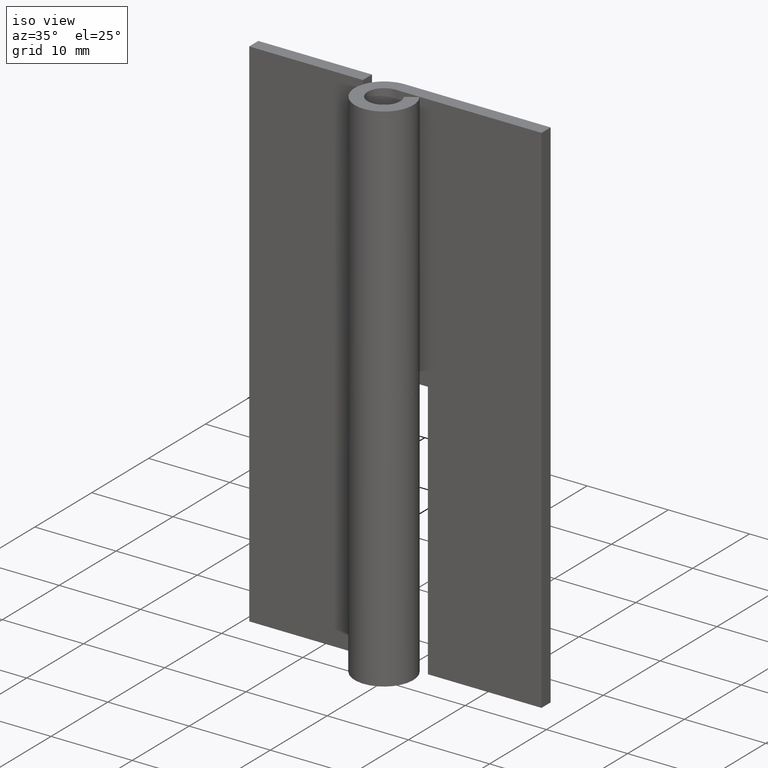
[diagram: clean part render]
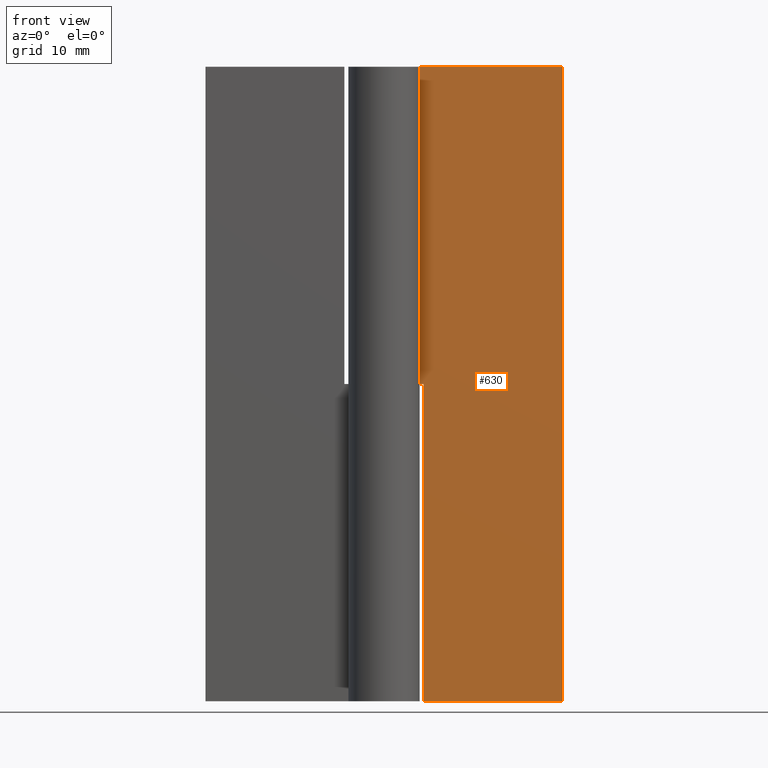
[diagram: tour spotlight — one face highlighted and labeled with its STEP entity id]
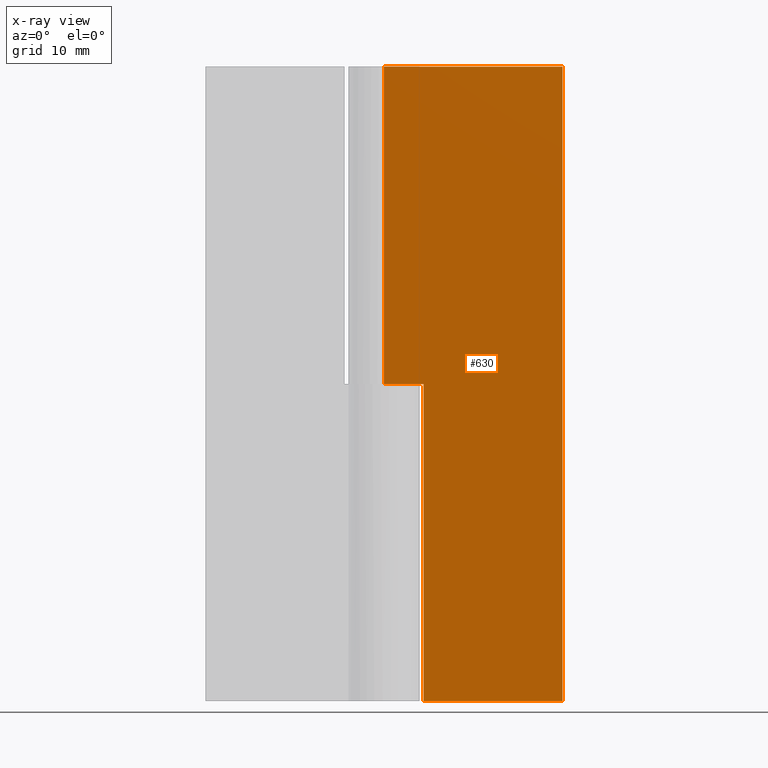
[diagram: x-ray of the same camera — body ghosted, this tour face saturated]
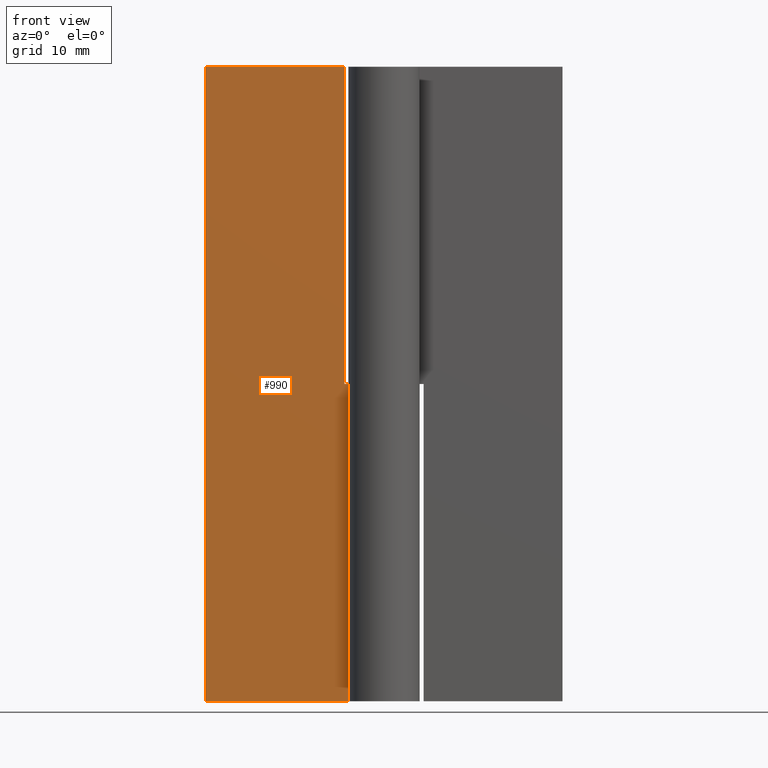
[diagram: tour spotlight — one face highlighted and labeled with its STEP entity id]
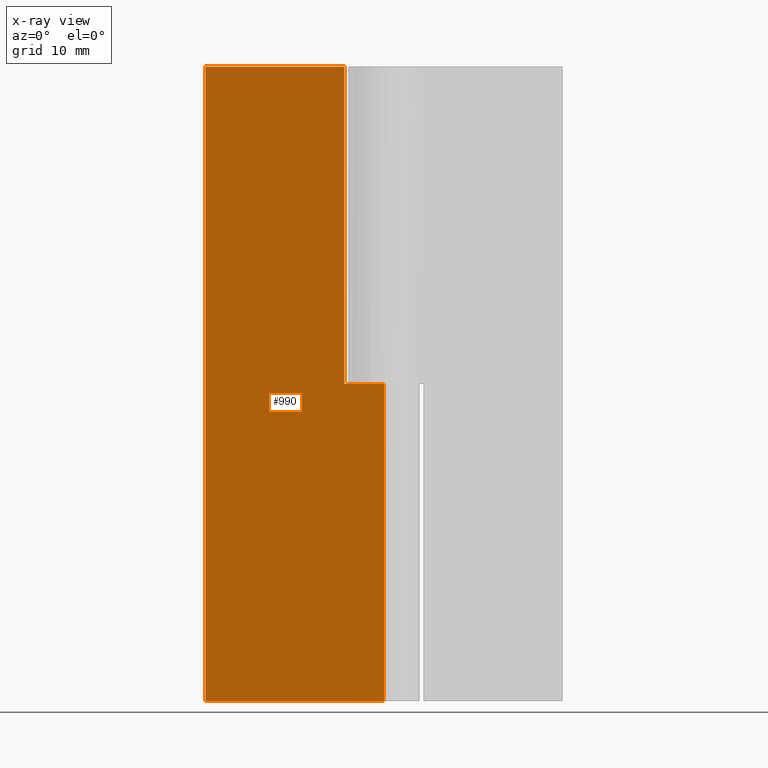
[diagram: x-ray of the same camera — body ghosted, this tour face saturated]
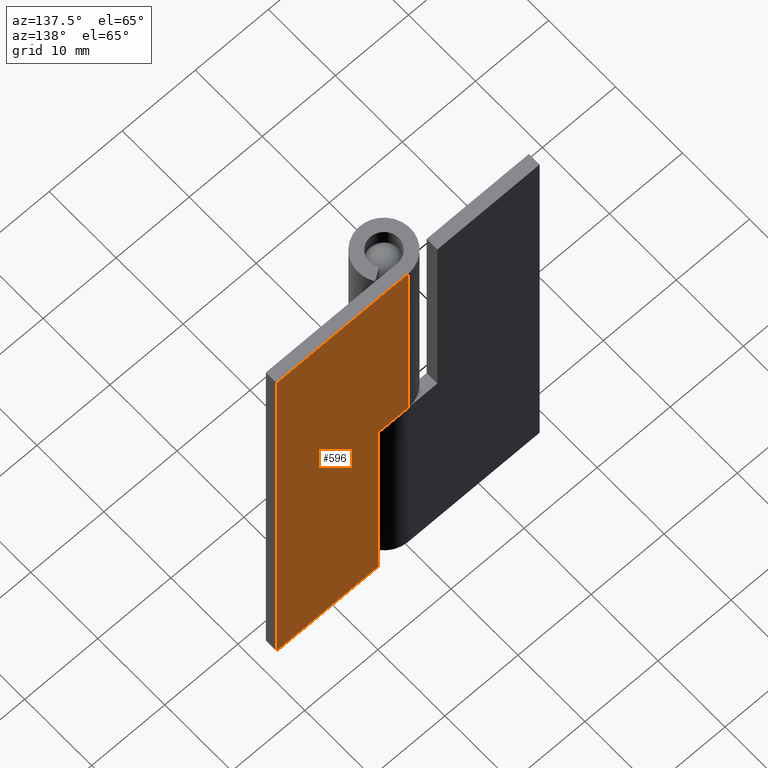
[diagram: tour spotlight — one face highlighted and labeled with its STEP entity id]
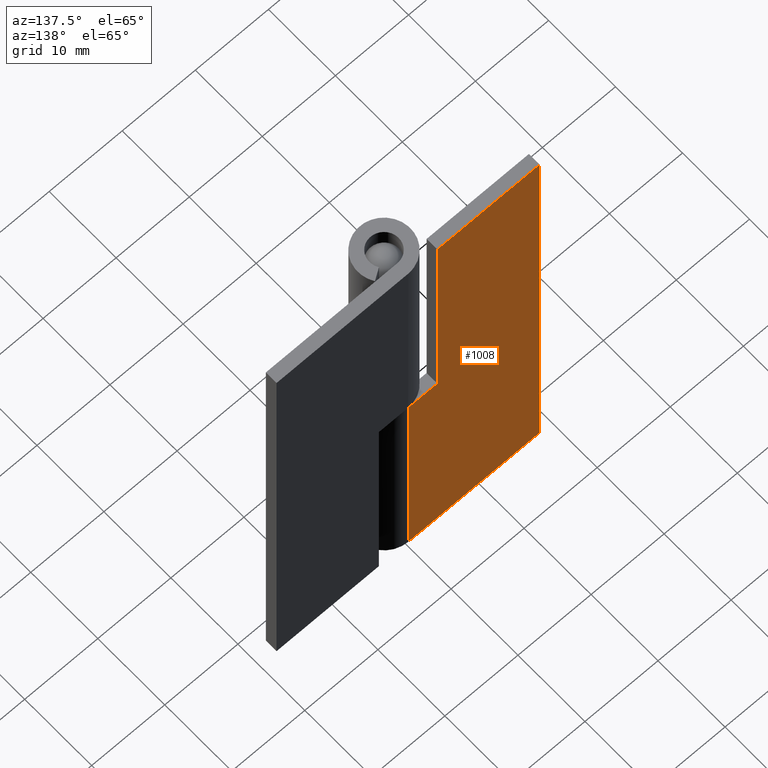
[diagram: tour spotlight — one face highlighted and labeled with its STEP entity id]
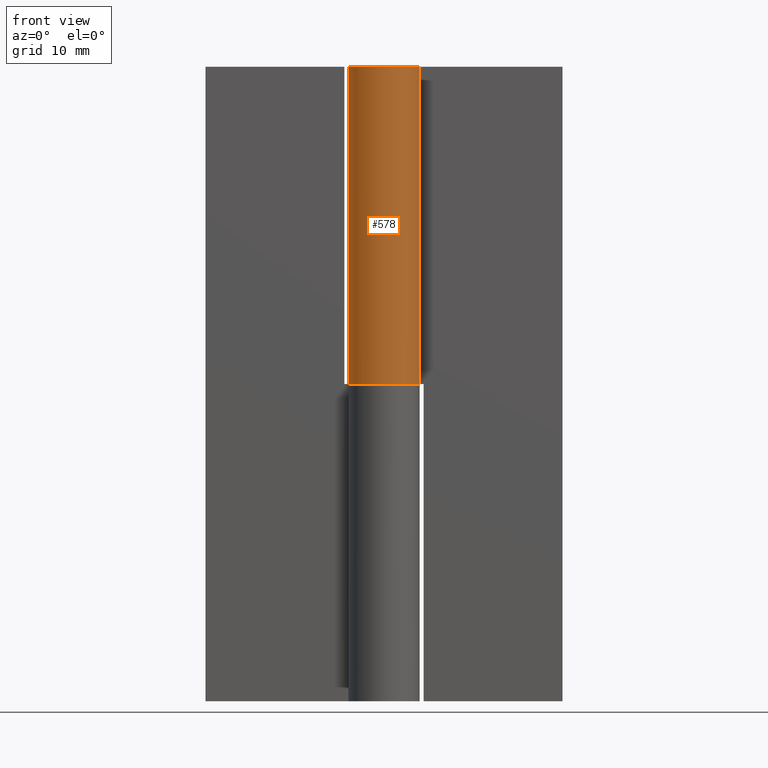
[diagram: tour spotlight — one face highlighted and labeled with its STEP entity id]
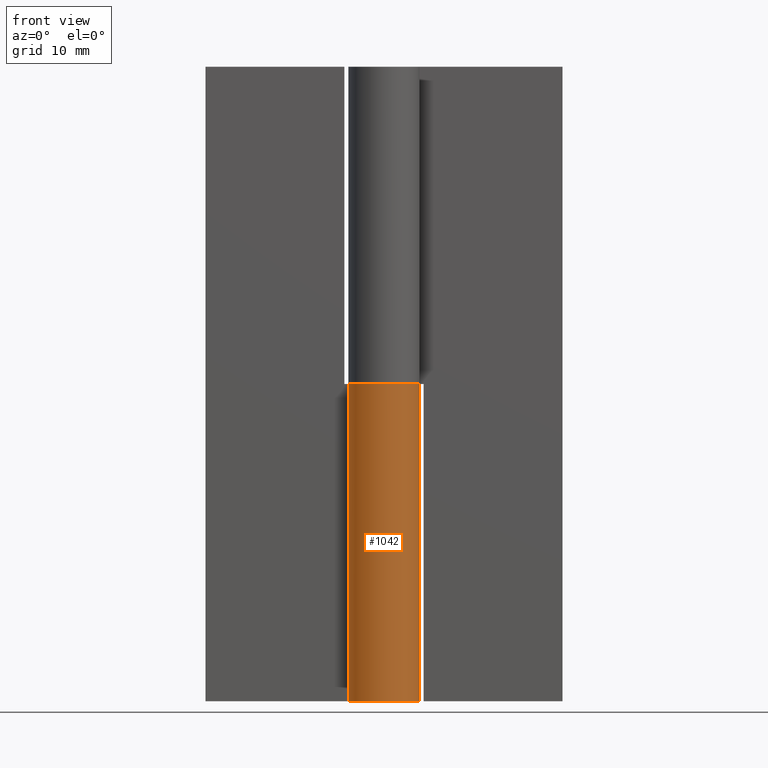
[diagram: tour spotlight — one face highlighted and labeled with its STEP entity id]
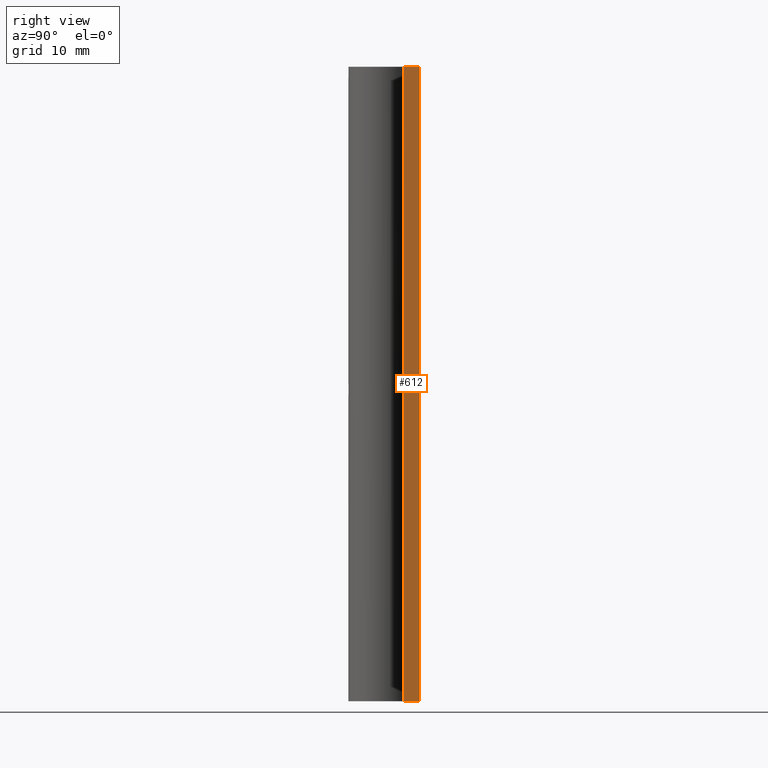
[diagram: tour spotlight — one face highlighted and labeled with its STEP entity id]
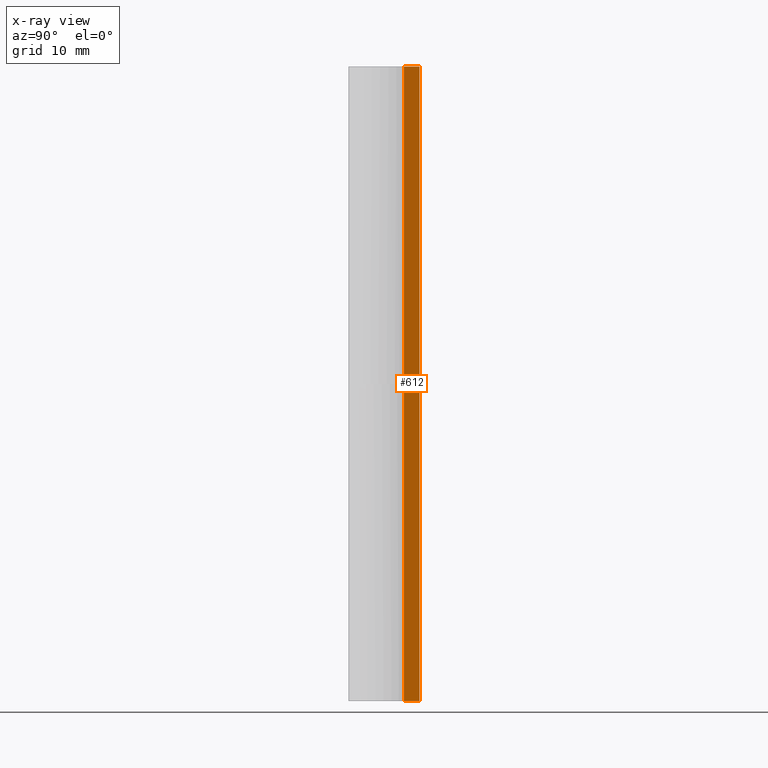
[diagram: x-ray of the same camera — body ghosted, this tour face saturated]
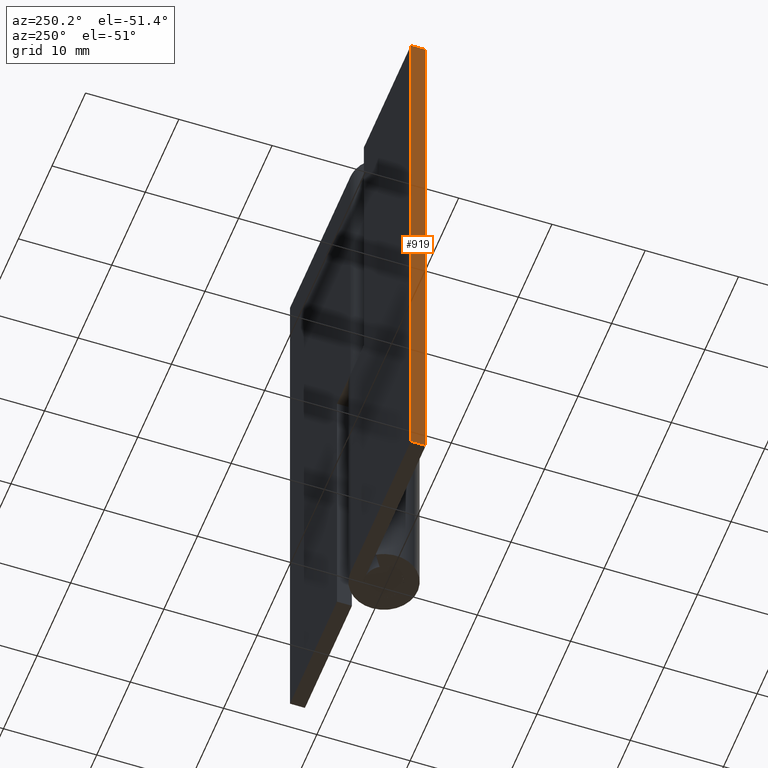
[diagram: tour spotlight — one face highlighted and labeled with its STEP entity id]
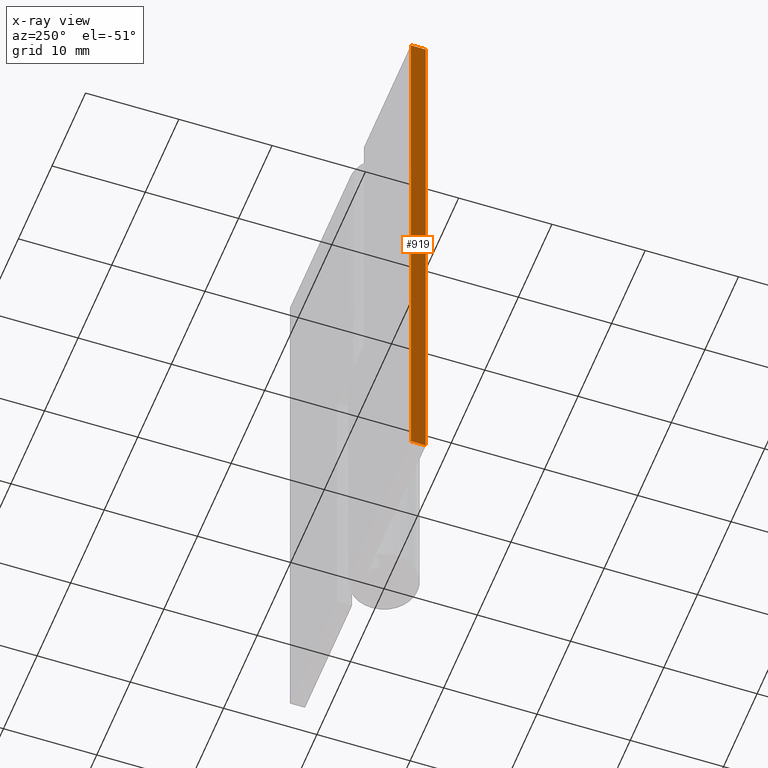
[diagram: x-ray of the same camera — body ghosted, this tour face saturated]
A machine part: a face-by-face anatomy tour. The part has 24 B-rep faces; the first image is the clean iso view, then the 8 largest visible faces are spotlighted one at a time (largest first), each with its STEP entity span.

Face 1 — front view, entity #630. An x-ray twin of the same camera follows (body ghosted, this face saturated) — the face is partly hidden behind the body. In plain terms, the highlighted face is a freeform B-spline surface patch.
Definition (entity closure, byte-faithful):
#319=CARTESIAN_POINT('',(4.0,2.0,0.0));
#320=VERTEX_POINT('',#319);
#321=CARTESIAN_POINT('',(4.0,2.0,32.000008000000051));
#322=VERTEX_POINT('',#321);
#323=CARTESIAN_POINT('',(4.0,2.0,0.0));
#324=CARTESIAN_POINT('',(4.0,2.0,32.000008000000051));
#325=QUASI_UNIFORM_CURVE('',1,(#323,#324),.UNSPECIFIED.,.F.,.U.);
#326=EDGE_CURVE('',#320,#322,#325,.T.);
#355=CARTESIAN_POINT('',(0.0,2.0,32.000008000000051));
#356=VERTEX_POINT('',#355);
#357=CARTESIAN_POINT('',(4.0,2.0,32.000008000000051));
#358=CARTESIAN_POINT('',(0.0,2.0,32.000008000000051));
#359=QUASI_UNIFORM_CURVE('',1,(#357,#358),.UNSPECIFIED.,.F.,.U.);
#360=EDGE_CURVE('',#322,#356,#359,.T.);
#427=CARTESIAN_POINT('',(0.0,2.0,64.000008000000093));
#428=VERTEX_POINT('',#427);
#448=CARTESIAN_POINT('',(18.0,2.0,64.000008000000093));
#449=VERTEX_POINT('',#448);
#450=CARTESIAN_POINT('',(0.0,2.0,64.000008000000093));
#451=CARTESIAN_POINT('',(18.0,2.0,64.000008000000093));
#452=QUASI_UNIFORM_CURVE('',1,(#450,#451),.UNSPECIFIED.,.F.,.U.);
#453=EDGE_CURVE('',#428,#449,#452,.T.);
#511=CARTESIAN_POINT('',(18.0,2.0,0.0));
#512=VERTEX_POINT('',#511);
#518=CARTESIAN_POINT('',(4.0,2.0,0.0));
#519=CARTESIAN_POINT('',(18.0,2.0,0.0));
#520=QUASI_UNIFORM_CURVE('',1,(#518,#519),.UNSPECIFIED.,.F.,.U.);
#521=EDGE_CURVE('',#320,#512,#520,.T.);
#603=CARTESIAN_POINT('',(18.0,2.0,0.0));
#604=CARTESIAN_POINT('',(18.0,2.0,64.000008000000093));
#605=QUASI_UNIFORM_CURVE('',1,(#603,#604),.UNSPECIFIED.,.F.,.U.);
#606=EDGE_CURVE('',#512,#449,#605,.T.);
#613=CARTESIAN_POINT('',(-0.899099965112507,2.0,67.196808275555668));
#614=CARTESIAN_POINT('',(-0.899099965112507,2.0,-3.196801992169553));
#615=CARTESIAN_POINT('',(18.899100447910129,2.0,67.196808275555668));
#616=CARTESIAN_POINT('',(18.899100447910129,2.0,-3.196801992169553));
#617=B_SPLINE_SURFACE_WITH_KNOTS('',1,1,((#613,#615),(#614,#616)),.UNSPECIFIED.,.F.,.F.,.U.,(2,2),(2,2),(0.0,70.393610267725222),(0.0,19.798200413022631),.UNSPECIFIED.);
#618=ORIENTED_EDGE('',*,*,#326,.F.);
#619=ORIENTED_EDGE('',*,*,#521,.T.);
#620=ORIENTED_EDGE('',*,*,#606,.T.);
#621=ORIENTED_EDGE('',*,*,#453,.F.);
#622=CARTESIAN_POINT('',(0.0,2.0,32.000008000000051));
#623=CARTESIAN_POINT('',(0.0,2.0,64.000008000000093));
#624=QUASI_UNIFORM_CURVE('',1,(#622,#623),.UNSPECIFIED.,.F.,.U.);
#625=EDGE_CURVE('',#356,#428,#624,.T.);
#626=ORIENTED_EDGE('',*,*,#625,.F.);
#627=ORIENTED_EDGE('',*,*,#360,.F.);
#628=EDGE_LOOP('',(#618,#619,#620,#621,#626,#627));
#629=FACE_OUTER_BOUND('',#628,.T.);
#630=ADVANCED_FACE('',(#629),#617,.T.);

Face 2 — front view, entity #990. An x-ray twin of the same camera follows (body ghosted, this face saturated) — the face is partly hidden behind the body. In plain terms, the highlighted face is a freeform B-spline surface patch.
Definition (entity closure, byte-faithful):
#708=CARTESIAN_POINT('',(-4.000000000000045,2.0,32.000008000000051));
#709=VERTEX_POINT('',#708);
#722=CARTESIAN_POINT('',(-4.000000000000045,2.0,64.000007999999994));
#723=VERTEX_POINT('',#722);
#729=CARTESIAN_POINT('',(-4.000000000000045,2.0,32.000008000000051));
#730=CARTESIAN_POINT('',(-4.000000000000045,2.0,64.000007999999994));
#731=QUASI_UNIFORM_CURVE('',1,(#729,#730),.UNSPECIFIED.,.F.,.U.);
#732=EDGE_CURVE('',#709,#723,#731,.T.);
#778=CARTESIAN_POINT('',(0.0,2.0,32.000008000000051));
#779=VERTEX_POINT('',#778);
#780=CARTESIAN_POINT('',(0.0,2.0,32.000008000000051));
#781=CARTESIAN_POINT('',(-4.000000000000045,2.0,32.000008000000051));
#782=QUASI_UNIFORM_CURVE('',1,(#780,#781),.UNSPECIFIED.,.F.,.U.);
#783=EDGE_CURVE('',#779,#709,#782,.T.);
#828=CARTESIAN_POINT('',(0.0,2.0,0.0));
#829=VERTEX_POINT('',#828);
#849=CARTESIAN_POINT('',(-18.0,2.0,0.0));
#850=VERTEX_POINT('',#849);
#851=CARTESIAN_POINT('',(-18.0,2.0,0.0));
#852=CARTESIAN_POINT('',(0.0,2.0,0.0));
#853=QUASI_UNIFORM_CURVE('',1,(#851,#852),.UNSPECIFIED.,.F.,.U.);
#854=EDGE_CURVE('',#850,#829,#853,.T.);
#899=CARTESIAN_POINT('',(-18.0,2.0,64.000008000000093));
#900=VERTEX_POINT('',#899);
#912=CARTESIAN_POINT('',(-18.0,2.0,0.0));
#913=CARTESIAN_POINT('',(-18.0,2.0,64.000008000000093));
#914=QUASI_UNIFORM_CURVE('',1,(#912,#913),.UNSPECIFIED.,.F.,.U.);
#915=EDGE_CURVE('',#850,#900,#914,.T.);
#932=CARTESIAN_POINT('',(-18.0,2.0,64.000008000000093));
#933=CARTESIAN_POINT('',(-4.000000000000045,2.0,64.000007999999994));
#934=QUASI_UNIFORM_CURVE('',1,(#932,#933),.UNSPECIFIED.,.F.,.U.);
#935=EDGE_CURVE('',#900,#723,#934,.T.);
#968=CARTESIAN_POINT('',(0.0,2.0,0.0));
#969=CARTESIAN_POINT('',(0.0,2.0,32.000008000000051));
#970=QUASI_UNIFORM_CURVE('',1,(#968,#969),.UNSPECIFIED.,.F.,.U.);
#971=EDGE_CURVE('',#829,#779,#970,.T.);
#977=CARTESIAN_POINT('',(-18.899099965112509,2.0,67.196808275555668));
#978=CARTESIAN_POINT('',(-18.899099965112509,2.0,-3.196801992169553));
#979=CARTESIAN_POINT('',(0.899100447910129,2.0,67.196808275555668));
#980=CARTESIAN_POINT('',(0.899100447910129,2.0,-3.196801992169553));
#981=B_SPLINE_SURFACE_WITH_KNOTS('',1,1,((#977,#979),(#978,#980)),.UNSPECIFIED.,.F.,.F.,.U.,(2,2),(2,2),(0.0,70.393610267725222),(0.0,19.798200413022631),.UNSPECIFIED.);
#982=ORIENTED_EDGE('',*,*,#971,.T.);
#983=ORIENTED_EDGE('',*,*,#783,.T.);
#984=ORIENTED_EDGE('',*,*,#732,.T.);
#985=ORIENTED_EDGE('',*,*,#935,.F.);
#986=ORIENTED_EDGE('',*,*,#915,.F.);
#987=ORIENTED_EDGE('',*,*,#854,.T.);
#988=EDGE_LOOP('',(#982,#983,#984,#985,#986,#987));
#989=FACE_OUTER_BOUND('',#988,.T.);
#990=ADVANCED_FACE('',(#989),#981,.T.);

Face 3 — auxiliary view, entity #596. In plain terms, the highlighted face is a freeform B-spline surface patch.
Definition (entity closure, byte-faithful):
#328=CARTESIAN_POINT('',(4.0,3.599998000000000,32.000008000000051));
#329=VERTEX_POINT('',#328);
#335=CARTESIAN_POINT('',(4.0,3.599998000000000,0.0));
#336=VERTEX_POINT('',#335);
#337=CARTESIAN_POINT('',(4.0,3.599998000000000,0.0));
#338=CARTESIAN_POINT('',(4.0,3.599998000000000,32.000008000000051));
#339=QUASI_UNIFORM_CURVE('',1,(#337,#338),.UNSPECIFIED.,.F.,.U.);
#340=EDGE_CURVE('',#336,#329,#339,.T.);
#390=CARTESIAN_POINT('',(-0.003794732665984,3.599998000000000,32.000008000000051));
#391=VERTEX_POINT('',#390);
#411=CARTESIAN_POINT('',(4.0,3.599998000000000,32.000008000000051));
#412=CARTESIAN_POINT('',(-0.003794732665984,3.599998000000000,32.000008000000051));
#413=QUASI_UNIFORM_CURVE('',1,(#411,#412),.UNSPECIFIED.,.F.,.U.);
#414=EDGE_CURVE('',#329,#391,#413,.T.);
#455=CARTESIAN_POINT('',(18.0,3.599998000000000,64.000008000000093));
#456=VERTEX_POINT('',#455);
#462=CARTESIAN_POINT('',(-0.003794732665984,3.599998000000000,64.000008000000093));
#463=VERTEX_POINT('',#462);
#464=CARTESIAN_POINT('',(18.0,3.599998000000000,64.000008000000093));
#465=CARTESIAN_POINT('',(-0.003794732665984,3.599998000000000,64.000008000000093));
#466=QUASI_UNIFORM_CURVE('',1,(#464,#465),.UNSPECIFIED.,.F.,.U.);
#467=EDGE_CURVE('',#456,#463,#466,.T.);
#504=CARTESIAN_POINT('',(18.0,3.599998000000000,0.0));
#505=VERTEX_POINT('',#504);
#506=CARTESIAN_POINT('',(18.0,3.599998000000000,0.0));
#507=CARTESIAN_POINT('',(4.0,3.599998000000000,0.0));
#508=QUASI_UNIFORM_CURVE('',1,(#506,#507),.UNSPECIFIED.,.F.,.U.);
#509=EDGE_CURVE('',#505,#336,#508,.T.);
#568=CARTESIAN_POINT('',(-0.003794732665984,3.599998000000000,32.000008000000051));
#569=CARTESIAN_POINT('',(-0.003794732665984,3.599998000000000,64.000008000000093));
#570=QUASI_UNIFORM_CURVE('',1,(#568,#569),.UNSPECIFIED.,.F.,.U.);
#571=EDGE_CURVE('',#391,#463,#570,.T.);
#579=CARTESIAN_POINT('',(-0.903084244667801,3.599998000000000,-3.196800275555570));
#580=CARTESIAN_POINT('',(-0.903084244667801,3.599998000000000,67.196809992169648));
#581=CARTESIAN_POINT('',(18.899289994901221,3.599998000000000,-3.196800275555570));
#582=CARTESIAN_POINT('',(18.899289994901221,3.599998000000000,67.196809992169648));
#583=B_SPLINE_SURFACE_WITH_KNOTS('',1,1,((#579,#581),(#580,#582)),.UNSPECIFIED.,.F.,.F.,.U.,(2,2),(2,2),(0.0,70.393610267725222),(0.0,19.802374239569030),.UNSPECIFIED.);
#584=ORIENTED_EDGE('',*,*,#340,.T.);
#585=ORIENTED_EDGE('',*,*,#414,.T.);
#586=ORIENTED_EDGE('',*,*,#571,.T.);
#587=ORIENTED_EDGE('',*,*,#467,.F.);
#588=CARTESIAN_POINT('',(18.0,3.599998000000000,0.0));
#589=CARTESIAN_POINT('',(18.0,3.599998000000000,64.000008000000093));
#590=QUASI_UNIFORM_CURVE('',1,(#588,#589),.UNSPECIFIED.,.F.,.U.);
#591=EDGE_CURVE('',#505,#456,#590,.T.);
#592=ORIENTED_EDGE('',*,*,#591,.F.);
#593=ORIENTED_EDGE('',*,*,#509,.T.);
#594=EDGE_LOOP('',(#584,#585,#586,#587,#592,#593));
#595=FACE_OUTER_BOUND('',#594,.T.);
#596=ADVANCED_FACE('',(#595),#583,.T.);

Face 4 — auxiliary view, entity #1008. In plain terms, the highlighted face is a freeform B-spline surface patch.
Definition (entity closure, byte-faithful):
#706=CARTESIAN_POINT('',(-4.000000000000045,3.599998000000000,32.000008000000051));
#707=VERTEX_POINT('',#706);
#715=CARTESIAN_POINT('',(-4.000000000000045,3.599998000000000,64.000008000000093));
#716=VERTEX_POINT('',#715);
#717=CARTESIAN_POINT('',(-4.000000000000045,3.599998000000000,32.000008000000051));
#718=CARTESIAN_POINT('',(-4.000000000000045,3.599998000000000,64.000008000000093));
#719=QUASI_UNIFORM_CURVE('',1,(#717,#718),.UNSPECIFIED.,.F.,.U.);
#720=EDGE_CURVE('',#707,#716,#719,.T.);
#765=CARTESIAN_POINT('',(-0.003794732665983,3.599998000000000,32.000008000000051));
#766=VERTEX_POINT('',#765);
#772=CARTESIAN_POINT('',(-0.003794732665983,3.599998000000000,32.000008000000051));
#773=CARTESIAN_POINT('',(-4.000000000000045,3.599998000000000,32.000008000000051));
#774=QUASI_UNIFORM_CURVE('',1,(#772,#773),.UNSPECIFIED.,.F.,.U.);
#775=EDGE_CURVE('',#766,#707,#774,.T.);
#856=CARTESIAN_POINT('',(-18.0,3.599998000000000,0.0));
#857=VERTEX_POINT('',#856);
#863=CARTESIAN_POINT('',(-0.003794732665983,3.599998000000000,0.0));
#864=VERTEX_POINT('',#863);
#865=CARTESIAN_POINT('',(-0.003794732665983,3.599998000000000,0.0));
#866=CARTESIAN_POINT('',(-18.0,3.599998000000000,0.0));
#867=QUASI_UNIFORM_CURVE('',1,(#865,#866),.UNSPECIFIED.,.F.,.U.);
#868=EDGE_CURVE('',#864,#857,#867,.T.);
#897=CARTESIAN_POINT('',(-18.0,3.599998000000000,64.000008000000093));
#898=VERTEX_POINT('',#897);
#906=CARTESIAN_POINT('',(-18.0,3.599998000000000,0.0));
#907=CARTESIAN_POINT('',(-18.0,3.599998000000000,64.000008000000093));
#908=QUASI_UNIFORM_CURVE('',1,(#906,#907),.UNSPECIFIED.,.F.,.U.);
#909=EDGE_CURVE('',#857,#898,#908,.T.);
#926=CARTESIAN_POINT('',(-4.000000000000045,3.599998000000000,64.000008000000093));
#927=CARTESIAN_POINT('',(-18.0,3.599998000000000,64.000008000000093));
#928=QUASI_UNIFORM_CURVE('',1,(#926,#927),.UNSPECIFIED.,.F.,.U.);
#929=EDGE_CURVE('',#716,#898,#928,.T.);
#991=CARTESIAN_POINT('',(-18.898910418223199,3.599998000000000,-3.196800275555570));
#992=CARTESIAN_POINT('',(-18.898910418223199,3.599998000000000,67.196809992169648));
#993=CARTESIAN_POINT('',(0.895116168253053,3.599998000000000,-3.196800275555570));
#994=CARTESIAN_POINT('',(0.895116168253053,3.599998000000000,67.196809992169648));
#995=B_SPLINE_SURFACE_WITH_KNOTS('',1,1,((#991,#993),(#992,#994)),.UNSPECIFIED.,.F.,.F.,.U.,(2,2),(2,2),(0.0,70.393610267725222),(0.0,19.794026586476249),.UNSPECIFIED.);
#996=ORIENTED_EDGE('',*,*,#720,.F.);
#997=ORIENTED_EDGE('',*,*,#775,.F.);
#998=CARTESIAN_POINT('',(-0.003794732665983,3.599998000000000,0.0));
#999=CARTESIAN_POINT('',(-0.003794732665983,3.599998000000000,32.000008000000051));
#1000=QUASI_UNIFORM_CURVE('',1,(#998,#999),.UNSPECIFIED.,.F.,.U.);
#1001=EDGE_CURVE('',#864,#766,#1000,.T.);
#1002=ORIENTED_EDGE('',*,*,#1001,.F.);
#1003=ORIENTED_EDGE('',*,*,#868,.T.);
#1004=ORIENTED_EDGE('',*,*,#909,.T.);
#1005=ORIENTED_EDGE('',*,*,#929,.F.);
#1006=EDGE_LOOP('',(#996,#997,#1002,#1003,#1004,#1005));
#1007=FACE_OUTER_BOUND('',#1006,.T.);
#1008=ADVANCED_FACE('',(#1007),#995,.T.);

Face 5 — front view, entity #578. In plain terms, the highlighted face is a freeform B-spline surface patch.
Definition (entity closure, byte-faithful):
#383=CARTESIAN_POINT('',(3.026136150274800,1.950000000000000,32.000008000000051));
#384=VERTEX_POINT('',#383);
#390=CARTESIAN_POINT('',(-0.003794732665984,3.599998000000000,32.000008000000051));
#391=VERTEX_POINT('',#390);
#392=CARTESIAN_POINT('',(-0.003794732665984,3.599997999999999,32.000008000000051));
#393=CARTESIAN_POINT('',(-2.800478292793388,3.597050035456120,32.000008000000058));
#394=CARTESIAN_POINT('',(-3.489147561616323,0.886481411687164,32.000008000000051));
#395=CARTESIAN_POINT('',(-4.177816830439257,-1.824087212081792,32.000008000000058));
#396=CARTESIAN_POINT('',(-1.721702721479357,-3.161603981976645,32.000008000000051));
#397=CARTESIAN_POINT('',(0.734411387480544,-4.499120751871498,32.000008000000058));
#398=CARTESIAN_POINT('',(2.637709320543041,-2.449997865370574,32.000008000000051));
#399=CARTESIAN_POINT('',(4.541007253605536,-0.400874978869650,32.000008000000058));
#400=CARTESIAN_POINT('',(3.026136150274803,1.949999999999999,32.000008000000051));
#408=(BOUNDED_CURVE()B_SPLINE_CURVE(2,(#392,#393,#394,#395,#396,#397,#398,#399,#400),.UNSPECIFIED.,.F.,.U.)B_SPLINE_CURVE_WITH_KNOTS((3,2,2,2,3),(0.0,0.250000000000000,0.500000000000000,0.750000000000000,1.0),.UNSPECIFIED.)CURVE()GEOMETRIC_REPRESENTATION_ITEM()RATIONAL_B_SPLINE_CURVE((1.0,0.789704480868727,1.0,0.789704480868727,1.0,0.789704480868727,1.0,0.789704480868727,1.0))REPRESENTATION_ITEM(''));
#409=EDGE_CURVE('',#391,#384,#408,.T.);
#462=CARTESIAN_POINT('',(-0.003794732665984,3.599998000000000,64.000008000000093));
#463=VERTEX_POINT('',#462);
#469=CARTESIAN_POINT('',(3.026136150274800,1.950000000000000,64.000008000000093));
#470=VERTEX_POINT('',#469);
#471=CARTESIAN_POINT('',(3.026136150274802,1.950000000000000,64.000008000000093));
#472=CARTESIAN_POINT('',(4.541007253605536,-0.400874978869648,64.000008000000093));
#473=CARTESIAN_POINT('',(2.637709320543042,-2.449997865370572,64.000008000000093));
#474=CARTESIAN_POINT('',(0.734411387480545,-4.499120751871497,64.000008000000093));
#475=CARTESIAN_POINT('',(-1.721702721479355,-3.161603981976646,64.000008000000093));
#476=CARTESIAN_POINT('',(-4.177816830439255,-1.824087212081795,64.000008000000093));
#477=CARTESIAN_POINT('',(-3.489147561616325,0.886481411687160,64.000008000000093));
#478=CARTESIAN_POINT('',(-2.800478292793393,3.597050035456119,64.000008000000093));
#479=CARTESIAN_POINT('',(-0.003794732665985,3.599997999999999,64.000008000000093));
#487=(BOUNDED_CURVE()B_SPLINE_CURVE(2,(#471,#472,#473,#474,#475,#476,#477,#478,#479),.UNSPECIFIED.,.F.,.U.)B_SPLINE_CURVE_WITH_KNOTS((3,2,2,2,3),(0.0,0.250000000000000,0.500000000000000,0.750000000000000,1.0),.UNSPECIFIED.)CURVE()GEOMETRIC_REPRESENTATION_ITEM()RATIONAL_B_SPLINE_CURVE((1.0,0.789704480868727,1.0,0.789704480868727,1.0,0.789704480868727,1.0,0.789704480868727,1.0))REPRESENTATION_ITEM(''));
#488=EDGE_CURVE('',#470,#463,#487,.T.);
#538=CARTESIAN_POINT('',(3.026136150274800,1.950000000000000,32.000008000000051));
#539=CARTESIAN_POINT('',(3.026136150274800,1.950000000000000,64.000008000000093));
#540=QUASI_UNIFORM_CURVE('',1,(#538,#539),.UNSPECIFIED.,.F.,.U.);
#541=EDGE_CURVE('',#384,#470,#540,.T.);
#546=CARTESIAN_POINT('',(2.964703270537402,2.042188658685780,31.200008000000039));
#547=CARTESIAN_POINT('',(2.964703270537402,2.042188658685780,64.820008000000115));
#548=CARTESIAN_POINT('',(5.532086281403621,-1.684954167548272,31.200008000000043));
#549=CARTESIAN_POINT('',(5.532086281403621,-1.684954167548272,64.820008000000115));
#550=CARTESIAN_POINT('',(1.322934369143241,-3.348110609722978,31.200008000000039));
#551=CARTESIAN_POINT('',(1.322934369143241,-3.348110609722978,64.820008000000115));
#552=CARTESIAN_POINT('',(-2.886217543117140,-5.011267051897684,31.200008000000043));
#553=CARTESIAN_POINT('',(-2.886217543117140,-5.011267051897684,64.820008000000115));
#554=CARTESIAN_POINT('',(-3.559894232870420,-0.535866635251648,31.200008000000039));
#555=CARTESIAN_POINT('',(-3.559894232870420,-0.535866635251648,64.820008000000115));
#556=CARTESIAN_POINT('',(-4.233570922623700,3.939533781394387,31.200008000000043));
#557=CARTESIAN_POINT('',(-4.233570922623700,3.939533781394387,64.820008000000115));
#558=CARTESIAN_POINT('',(0.278669552930452,3.589198138898094,31.200008000000039));
#559=CARTESIAN_POINT('',(0.278669552930452,3.589198138898094,64.820008000000115));
#567=(BOUNDED_SURFACE()B_SPLINE_SURFACE(1,2,((#546,#548,#550,#552,#554,#556,#558),(#547,#549,#551,#553,#555,#557,#559)),.UNSPECIFIED.,.F.,.F.,.U.)B_SPLINE_SURFACE_WITH_KNOTS((2,2),(3,2,2,3),(0.0,33.620000000000083),(0.0,6.945735467773017,13.891470935546030,20.837206403319051),.UNSPECIFIED.)GEOMETRIC_REPRESENTATION_ITEM()RATIONAL_B_SPLINE_SURFACE(((1.0,0.622514636637620,1.0,0.622514636637620,1.0,0.622514636637620,1.0),(1.0,0.622514636637620,1.0,0.622514636637620,1.0,0.622514636637620,1.0)))REPRESENTATION_ITEM('')SURFACE());
#568=CARTESIAN_POINT('',(-0.003794732665984,3.599998000000000,32.000008000000051));
#569=CARTESIAN_POINT('',(-0.003794732665984,3.599998000000000,64.000008000000093));
#570=QUASI_UNIFORM_CURVE('',1,(#568,#569),.UNSPECIFIED.,.F.,.U.);
#571=EDGE_CURVE('',#391,#463,#570,.T.);
#572=ORIENTED_EDGE('',*,*,#571,.F.);
#573=ORIENTED_EDGE('',*,*,#409,.T.);
#574=ORIENTED_EDGE('',*,*,#541,.T.);
#575=ORIENTED_EDGE('',*,*,#488,.T.);
#576=EDGE_LOOP('',(#572,#573,#574,#575));
#577=FACE_OUTER_BOUND('',#576,.T.);
#578=ADVANCED_FACE('',(#577),#567,.T.);

Face 6 — front view, entity #1042. In plain terms, the highlighted face is a freeform B-spline surface patch.
Definition (entity closure, byte-faithful):
#742=CARTESIAN_POINT('',(-3.026136150274805,1.950000000000000,32.000008000000051));
#743=VERTEX_POINT('',#742);
#744=CARTESIAN_POINT('',(0.0,3.599998000000000,32.000008000000051));
#745=VERTEX_POINT('',#744);
#746=CARTESIAN_POINT('',(-3.026136150274805,1.950000000000000,32.000008000000051));
#747=CARTESIAN_POINT('',(-4.541419292909128,-0.401512982956539,32.000008000000058));
#748=CARTESIAN_POINT('',(-2.637063597806922,-2.450691853562209,32.000008000000051));
#749=CARTESIAN_POINT('',(-0.732707902704717,-4.499870724167879,32.000008000000058));
#750=CARTESIAN_POINT('',(1.723368793961407,-3.160697125855821,32.000008000000051));
#751=CARTESIAN_POINT('',(4.179445490627531,-1.821523527543764,32.000008000000058));
#752=CARTESIAN_POINT('',(3.488445646206988,0.889236523647994,32.000008000000051));
#753=CARTESIAN_POINT('',(2.797445801786444,3.599996574839753,32.000008000000058));
#754=CARTESIAN_POINT('',(0.0,3.599998000000000,32.000008000000051));
#762=(BOUNDED_CURVE()B_SPLINE_CURVE(2,(#746,#747,#748,#749,#750,#751,#752,#753,#754),.UNSPECIFIED.,.F.,.U.)B_SPLINE_CURVE_WITH_KNOTS((3,2,2,2,3),(0.0,0.250000000000000,0.500000000000000,0.750000000000000,1.0),.UNSPECIFIED.)CURVE()GEOMETRIC_REPRESENTATION_ITEM()RATIONAL_B_SPLINE_CURVE((1.0,0.789623639943024,1.0,0.789623639943024,1.0,0.789623639943024,1.0,0.789623639943024,1.0))REPRESENTATION_ITEM(''));
#763=EDGE_CURVE('',#743,#745,#762,.T.);
#765=CARTESIAN_POINT('',(-0.003794732665983,3.599998000000000,32.000008000000051));
#766=VERTEX_POINT('',#765);
#767=CARTESIAN_POINT('',(0.0,3.599998000000000,32.000008000000051));
#768=CARTESIAN_POINT('',(-0.003794732665983,3.599998000000000,32.000008000000051));
#769=QUASI_UNIFORM_CURVE('',1,(#767,#768),.UNSPECIFIED.,.F.,.U.);
#770=EDGE_CURVE('',#745,#766,#769,.T.);
#821=CARTESIAN_POINT('',(-3.026136150274805,1.950000000000000,0.0));
#822=VERTEX_POINT('',#821);
#863=CARTESIAN_POINT('',(-0.003794732665983,3.599998000000000,0.0));
#864=VERTEX_POINT('',#863);
#870=CARTESIAN_POINT('',(-0.003794732665984,3.599997999999999,0.0));
#871=CARTESIAN_POINT('',(2.794410358292486,3.602947568378865,0.0));
#872=CARTESIAN_POINT('',(3.487741550519032,0.891997128237027,0.0));
#873=CARTESIAN_POINT('',(4.181072742745578,-1.818953311904812,0.0));
#874=CARTESIAN_POINT('',(1.725034387729875,-3.159787391763790,0.0));
#875=CARTESIAN_POINT('',(-0.731003967285830,-4.500621471622770,0.0));
#876=CARTESIAN_POINT('',(-2.636417691941365,-2.451387719969765,0.0));
#877=CARTESIAN_POINT('',(-4.541831416596898,-0.402153968316764,0.0));
#878=CARTESIAN_POINT('',(-3.026136150274803,1.949999999999999,0.0));
#886=(BOUNDED_CURVE()B_SPLINE_CURVE(2,(#870,#871,#872,#873,#874,#875,#876,#877,#878),.UNSPECIFIED.,.F.,.U.)B_SPLINE_CURVE_WITH_KNOTS((3,2,2,2,3),(0.0,0.250000000000000,0.500000000000000,0.750000000000000,1.0),.UNSPECIFIED.)CURVE()GEOMETRIC_REPRESENTATION_ITEM()RATIONAL_B_SPLINE_CURVE((1.0,0.789542785308575,1.0,0.789542785308575,1.0,0.789542785308575,1.0,0.789542785308575,1.0))REPRESENTATION_ITEM(''));
#887=EDGE_CURVE('',#864,#822,#886,.T.);
#998=CARTESIAN_POINT('',(-0.003794732665983,3.599998000000000,0.0));
#999=CARTESIAN_POINT('',(-0.003794732665983,3.599998000000000,32.000008000000051));
#1000=QUASI_UNIFORM_CURVE('',1,(#998,#999),.UNSPECIFIED.,.F.,.U.);
#1001=EDGE_CURVE('',#864,#766,#1000,.T.);
#1009=CARTESIAN_POINT('',(-0.106976321486422,3.598410213780694,-0.800000200000002));
#1010=CARTESIAN_POINT('',(-0.106976321486422,3.598410213780694,32.820008205000072));
#1011=CARTESIAN_POINT('',(4.416845319425701,3.732897881793672,-0.800000200000004));
#1012=CARTESIAN_POINT('',(4.416845319425701,3.732897881793672,32.820008205000072));
#1013=CARTESIAN_POINT('',(3.530247629433546,-0.705231646254490,-0.800000200000002));
#1014=CARTESIAN_POINT('',(3.530247629433546,-0.705231646254490,32.820008205000072));
#1015=CARTESIAN_POINT('',(2.643649939441389,-5.143361174302651,-0.800000200000004));
#1016=CARTESIAN_POINT('',(2.643649939441389,-5.143361174302651,32.820008205000072));
#1017=CARTESIAN_POINT('',(-1.481289531185593,-3.281125009017480,-0.800000200000002));
#1018=CARTESIAN_POINT('',(-1.481289531185593,-3.281125009017480,32.820008205000072));
#1019=CARTESIAN_POINT('',(-5.606229001812576,-1.418888843732306,-0.800000200000004));
#1020=CARTESIAN_POINT('',(-5.606229001812576,-1.418888843732306,32.820008205000072));
#1021=CARTESIAN_POINT('',(-2.863812345776088,2.181416706679504,-0.800000200000002));
#1022=CARTESIAN_POINT('',(-2.863812345776088,2.181416706679504,32.820008205000072));
#1030=(BOUNDED_SURFACE()B_SPLINE_SURFACE(1,2,((#1009,#1011,#1013,#1015,#1017,#1019,#1021),(#1010,#1012,#1014,#1016,#1018,#1020,#1022)),.UNSPECIFIED.,.F.,.F.,.U.)B_SPLINE_SURFACE_WITH_KNOTS((2,2),(3,2,2,3),(0.0,33.620008405000071),(0.0,6.945735467773013,13.891470935546030,20.837206403319041),.UNSPECIFIED.)GEOMETRIC_REPRESENTATION_ITEM()RATIONAL_B_SPLINE_SURFACE(((1.0,0.622514636637620,1.0,0.622514636637620,1.0,0.622514636637620,1.0),(1.0,0.622514636637620,1.0,0.622514636637620,1.0,0.622514636637620,1.0)))REPRESENTATION_ITEM('')SURFACE());
#1031=ORIENTED_EDGE('',*,*,#770,.F.);
#1032=ORIENTED_EDGE('',*,*,#763,.F.);
#1033=CARTESIAN_POINT('',(-3.026136150274805,1.950000000000000,0.0));
#1034=CARTESIAN_POINT('',(-3.026136150274805,1.950000000000000,32.000008000000051));
#1035=QUASI_UNIFORM_CURVE('',1,(#1033,#1034),.UNSPECIFIED.,.F.,.U.);
#1036=EDGE_CURVE('',#822,#743,#1035,.T.);
#1037=ORIENTED_EDGE('',*,*,#1036,.F.);
#1038=ORIENTED_EDGE('',*,*,#887,.F.);
#1039=ORIENTED_EDGE('',*,*,#1001,.T.);
#1040=EDGE_LOOP('',(#1031,#1032,#1037,#1038,#1039));
#1041=FACE_OUTER_BOUND('',#1040,.T.);
#1042=ADVANCED_FACE('',(#1041),#1030,.T.);

Face 7 — right view, entity #612. An x-ray twin of the same camera follows (body ghosted, this face saturated) — the face is partly hidden behind the body. In plain terms, the highlighted face is a freeform B-spline surface patch.
Definition (entity closure, byte-faithful):
#448=CARTESIAN_POINT('',(18.0,2.0,64.000008000000093));
#449=VERTEX_POINT('',#448);
#455=CARTESIAN_POINT('',(18.0,3.599998000000000,64.000008000000093));
#456=VERTEX_POINT('',#455);
#457=CARTESIAN_POINT('',(18.0,2.0,64.000008000000093));
#458=CARTESIAN_POINT('',(18.0,3.599998000000000,64.000008000000093));
#459=QUASI_UNIFORM_CURVE('',1,(#457,#458),.UNSPECIFIED.,.F.,.U.);
#460=EDGE_CURVE('',#449,#456,#459,.T.);
#504=CARTESIAN_POINT('',(18.0,3.599998000000000,0.0));
#505=VERTEX_POINT('',#504);
#511=CARTESIAN_POINT('',(18.0,2.0,0.0));
#512=VERTEX_POINT('',#511);
#513=CARTESIAN_POINT('',(18.0,2.0,0.0));
#514=CARTESIAN_POINT('',(18.0,3.599998000000000,0.0));
#515=QUASI_UNIFORM_CURVE('',1,(#513,#514),.UNSPECIFIED.,.F.,.U.);
#516=EDGE_CURVE('',#512,#505,#515,.T.);
#588=CARTESIAN_POINT('',(18.0,3.599998000000000,0.0));
#589=CARTESIAN_POINT('',(18.0,3.599998000000000,64.000008000000093));
#590=QUASI_UNIFORM_CURVE('',1,(#588,#589),.UNSPECIFIED.,.F.,.U.);
#591=EDGE_CURVE('',#505,#456,#590,.T.);
#597=CARTESIAN_POINT('',(18.0,1.920080103001107,67.196808275555668));
#598=CARTESIAN_POINT('',(18.0,1.920080103001107,-3.196801992169553));
#599=CARTESIAN_POINT('',(18.0,3.679917939914185,67.196808275555668));
#600=CARTESIAN_POINT('',(18.0,3.679917939914185,-3.196801992169553));
#601=B_SPLINE_SURFACE_WITH_KNOTS('',1,1,((#597,#599),(#598,#600)),.UNSPECIFIED.,.F.,.F.,.U.,(2,2),(2,2),(0.0,70.393610267725222),(0.041708334948495,0.958291687403247),.UNSPECIFIED.);
#602=ORIENTED_EDGE('',*,*,#460,.F.);
#603=CARTESIAN_POINT('',(18.0,2.0,0.0));
#604=CARTESIAN_POINT('',(18.0,2.0,64.000008000000093));
#605=QUASI_UNIFORM_CURVE('',1,(#603,#604),.UNSPECIFIED.,.F.,.U.);
#606=EDGE_CURVE('',#512,#449,#605,.T.);
#607=ORIENTED_EDGE('',*,*,#606,.F.);
#608=ORIENTED_EDGE('',*,*,#516,.T.);
#609=ORIENTED_EDGE('',*,*,#591,.T.);
#610=EDGE_LOOP('',(#602,#607,#608,#609));
#611=FACE_OUTER_BOUND('',#610,.T.);
#612=ADVANCED_FACE('',(#611),#601,.T.);

Face 8 — auxiliary view, entity #919. An x-ray twin of the same camera follows (body ghosted, this face saturated) — the face is partly hidden behind the body. In plain terms, the highlighted face is a freeform B-spline surface patch.
Definition (entity closure, byte-faithful):
#849=CARTESIAN_POINT('',(-18.0,2.0,0.0));
#850=VERTEX_POINT('',#849);
#856=CARTESIAN_POINT('',(-18.0,3.599998000000000,0.0));
#857=VERTEX_POINT('',#856);
#858=CARTESIAN_POINT('',(-18.0,3.599998000000000,0.0));
#859=CARTESIAN_POINT('',(-18.0,2.0,0.0));
#860=QUASI_UNIFORM_CURVE('',1,(#858,#859),.UNSPECIFIED.,.F.,.U.);
#861=EDGE_CURVE('',#857,#850,#860,.T.);
#892=CARTESIAN_POINT('',(-18.0,1.920080103001107,-3.196800275555570));
#893=CARTESIAN_POINT('',(-18.0,1.920080103001107,67.196809992169648));
#894=CARTESIAN_POINT('',(-18.0,3.679917939914185,-3.196800275555570));
#895=CARTESIAN_POINT('',(-18.0,3.679917939914185,67.196809992169648));
#896=B_SPLINE_SURFACE_WITH_KNOTS('',1,1,((#892,#894),(#893,#895)),.UNSPECIFIED.,.F.,.F.,.U.,(2,2),(2,2),(0.0,70.393610267725222),(0.041708334948495,0.958291687403247),.UNSPECIFIED.);
#897=CARTESIAN_POINT('',(-18.0,3.599998000000000,64.000008000000093));
#898=VERTEX_POINT('',#897);
#899=CARTESIAN_POINT('',(-18.0,2.0,64.000008000000093));
#900=VERTEX_POINT('',#899);
#901=CARTESIAN_POINT('',(-18.0,3.599998000000000,64.000008000000093));
#902=CARTESIAN_POINT('',(-18.0,2.0,64.000008000000093));
#903=QUASI_UNIFORM_CURVE('',1,(#901,#902),.UNSPECIFIED.,.F.,.U.);
#904=EDGE_CURVE('',#898,#900,#903,.T.);
#905=ORIENTED_EDGE('',*,*,#904,.F.);
#906=CARTESIAN_POINT('',(-18.0,3.599998000000000,0.0));
#907=CARTESIAN_POINT('',(-18.0,3.599998000000000,64.000008000000093));
#908=QUASI_UNIFORM_CURVE('',1,(#906,#907),.UNSPECIFIED.,.F.,.U.);
#909=EDGE_CURVE('',#857,#898,#908,.T.);
#910=ORIENTED_EDGE('',*,*,#909,.F.);
#911=ORIENTED_EDGE('',*,*,#861,.T.);
#912=CARTESIAN_POINT('',(-18.0,2.0,0.0));
#913=CARTESIAN_POINT('',(-18.0,2.0,64.000008000000093));
#914=QUASI_UNIFORM_CURVE('',1,(#912,#913),.UNSPECIFIED.,.F.,.U.);
#915=EDGE_CURVE('',#850,#900,#914,.T.);
#916=ORIENTED_EDGE('',*,*,#915,.T.);
#917=EDGE_LOOP('',(#905,#910,#911,#916));
#918=FACE_OUTER_BOUND('',#917,.T.);
#919=ADVANCED_FACE('',(#918),#896,.T.);